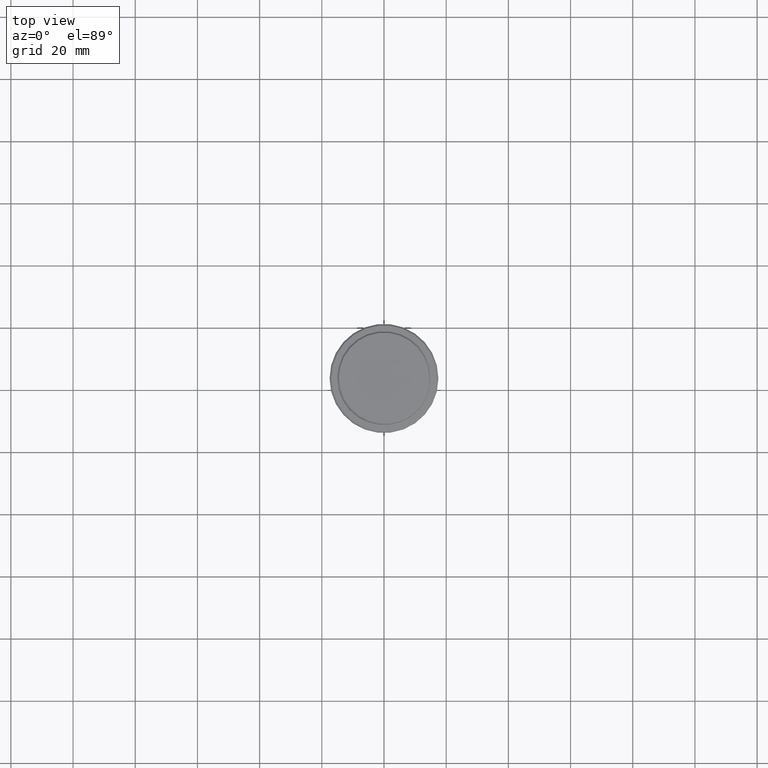
[diagram: clean part render]
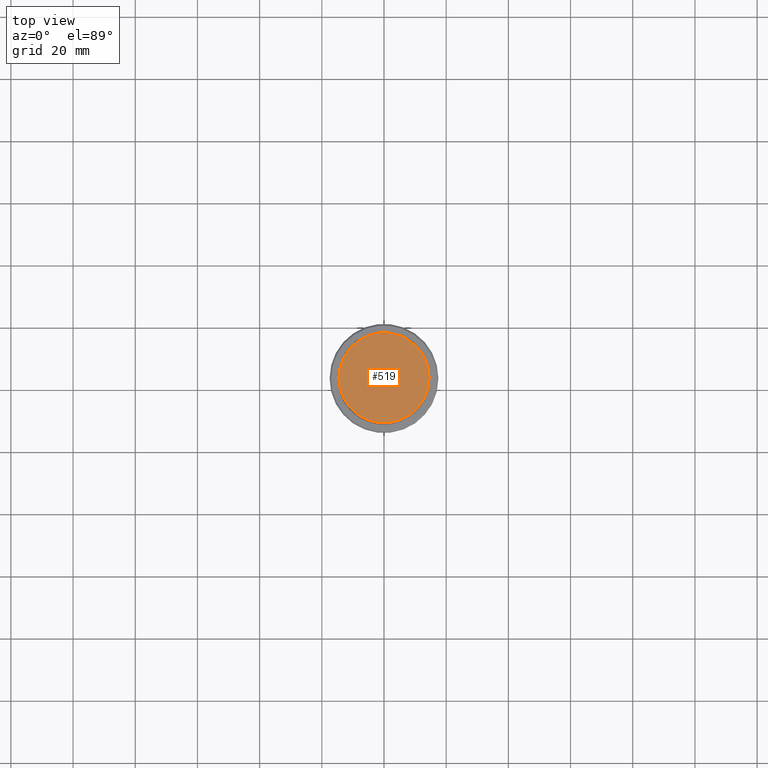
[diagram: same view with one face highlighted and labeled with its STEP entity id]
A machine part, top view. The second image highlights one B-rep face of the part: STEP entity #519.
In plain terms, the highlighted planar face has unit normal (0, -0, 1).
Its self-contained STEP definition (entity closure, byte-faithful):
#69 = EDGE_CURVE ( 'NONE', #1334, #284, #1098, .T. ) ;
#203 = EDGE_CURVE ( 'NONE', #284, #1334, #1125, .T. ) ;
#212 = CARTESIAN_POINT ( 'NONE',  ( 0.000000000000000000, 0.000000000000000000, 0.000000000000000000 ) ) ;
#259 = ORIENTED_EDGE ( 'NONE', *, *, #203, .T. ) ;
#284 = VERTEX_POINT ( 'NONE', #664 ) ;
#319 = DIRECTION ( 'NONE',  ( -0.000000000000000000, -0.000000000000000000, 1.000000000000000000 ) ) ;
#331 = DIRECTION ( 'NONE',  ( -0.000000000000000000, -0.000000000000000000, 1.000000000000000000 ) ) ;
#392 = EDGE_LOOP ( 'NONE', ( #259, #588 ) ) ;
#474 = AXIS2_PLACEMENT_3D ( 'NONE', #212, #319, #1412 ) ;
#519 = ADVANCED_FACE ( 'NONE', ( #1170 ), #1062, .T. ) ;
#588 = ORIENTED_EDGE ( 'NONE', *, *, #69, .T. ) ;
#613 = DIRECTION ( 'NONE',  ( 0.000000000000000000, -0.000000000000000000, 1.000000000000000000 ) ) ;
#641 = DIRECTION ( 'NONE',  ( 1.000000000000000000, 0.000000000000000000, 0.000000000000000000 ) ) ;
#664 = CARTESIAN_POINT ( 'NONE',  ( -14.50000000000001066, 0.000000000000000000, 0.000000000000000000 ) ) ;
#759 = DIRECTION ( 'NONE',  ( 1.000000000000000000, 0.000000000000000000, 0.000000000000000000 ) ) ;
#954 = CARTESIAN_POINT ( 'NONE',  ( 0.000000000000000000, 0.000000000000000000, 0.000000000000000000 ) ) ;
#1062 = PLANE ( 'NONE',  #1292 ) ;
#1098 = CIRCLE ( 'NONE', #474, 14.50000000000001066 ) ;
#1125 = CIRCLE ( 'NONE', #1315, 14.50000000000001066 ) ;
#1170 = FACE_OUTER_BOUND ( 'NONE', #392, .T. ) ;
#1292 = AXIS2_PLACEMENT_3D ( 'NONE', #954, #613, #641 ) ;
#1315 = AXIS2_PLACEMENT_3D ( 'NONE', #1417, #331, #759 ) ;
#1334 = VERTEX_POINT ( 'NONE', #1355 ) ;
#1355 = CARTESIAN_POINT ( 'NONE',  ( 14.50000000000001066, 1.806354028742346591E-15, 0.000000000000000000 ) ) ;
#1412 = DIRECTION ( 'NONE',  ( 1.000000000000000000, 0.000000000000000000, 0.000000000000000000 ) ) ;
#1417 = CARTESIAN_POINT ( 'NONE',  ( 0.000000000000000000, 0.000000000000000000, 0.000000000000000000 ) ) ;